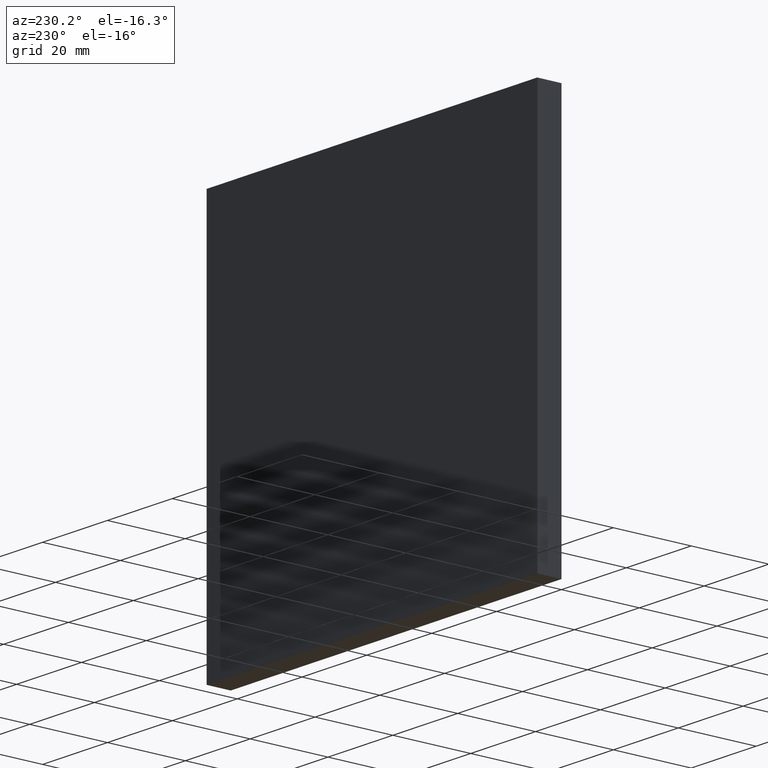
[diagram: clean part render]
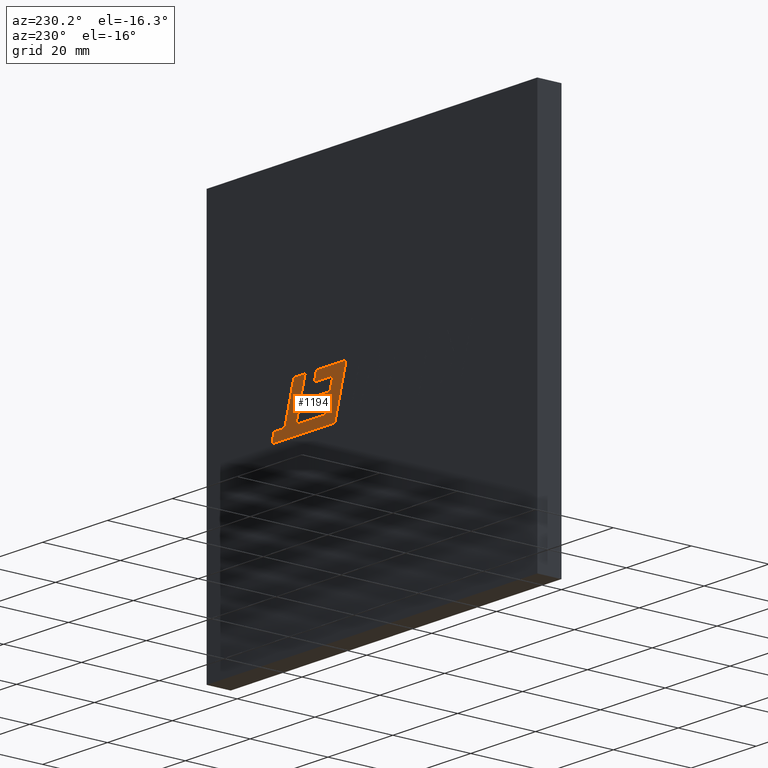
[diagram: same view with one face highlighted and labeled with its STEP entity id]
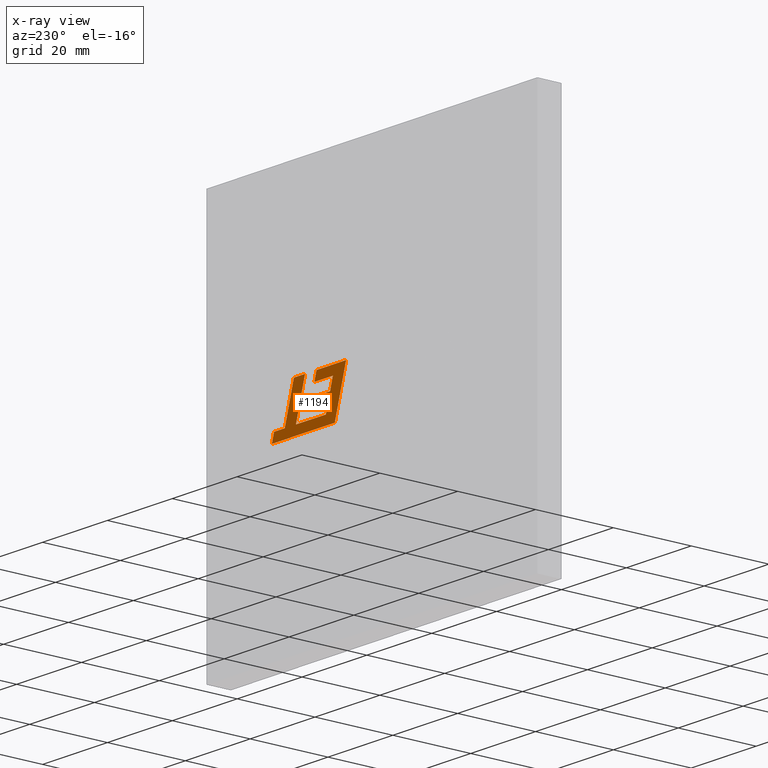
[diagram: x-ray of the same camera — body ghosted, the highlighted face saturated]
A machine part, auxiliary view. The second image highlights one B-rep face of the part: STEP entity #1194.
The next image is the same camera in x-ray: the body ghosted, the highlighted face saturated — about 0% of this face is hidden behind the body in this view.
In plain terms, the highlighted planar face has unit normal (0, 1, 0).
Its self-contained STEP definition (entity closure, byte-faithful):
#8 = ORIENTED_EDGE ( 'NONE', *, *, #1482, .T. ) ;
#19 = ORIENTED_EDGE ( 'NONE', *, *, #730, .T. ) ;
#33 = LINE ( 'NONE', #58, #151 ) ;
#39 = DIRECTION ( 'NONE',  ( 0.2745159998572700988, 0.000000000000000000, -0.9615825319869134580 ) ) ;
#58 = CARTESIAN_POINT ( 'NONE',  ( 69.11094975801582052, 6.204999999999999183, -50.18799707247540454 ) ) ;
#65 = ORIENTED_EDGE ( 'NONE', *, *, #262, .T. ) ;
#95 = EDGE_CURVE ( 'NONE', #1988, #1089, #1320, .T. ) ;
#97 = DIRECTION ( 'NONE',  ( 0.2762437428917347559, 0.000000000000000000, -0.9610876102172813962 ) ) ;
#118 = EDGE_CURVE ( 'NONE', #1089, #282, #251, .T. ) ;
#151 = VECTOR ( 'NONE', #848, 1000.000000000000227 ) ;
#154 = VECTOR ( 'NONE', #1835, 1000.000000000000000 ) ;
#164 = EDGE_CURVE ( 'NONE', #755, #484, #1156, .T. ) ;
#168 = EDGE_CURVE ( 'NONE', #389, #353, #1849, .T. ) ;
#172 = PLANE ( 'NONE',  #1006 ) ;
#186 = DIRECTION ( 'NONE',  ( 1.000000000000000000, 0.000000000000000000, 0.000000000000000000 ) ) ;
#195 = ORIENTED_EDGE ( 'NONE', *, *, #168, .T. ) ;
#203 = CARTESIAN_POINT ( 'NONE',  ( 69.11094975801582052, 6.204999999999999183, -50.18799707247540454 ) ) ;
#240 = LINE ( 'NONE', #1321, #1201 ) ;
#251 = LINE ( 'NONE', #1685, #419 ) ;
#261 = DIRECTION ( 'NONE',  ( 0.2729786930695107805, 0.000000000000000000, -0.9620200793798753258 ) ) ;
#262 = EDGE_CURVE ( 'NONE', #384, #1135, #1232, .T. ) ;
#263 = VERTEX_POINT ( 'NONE', #1728 ) ;
#282 = VERTEX_POINT ( 'NONE', #1397 ) ;
#331 = DIRECTION ( 'NONE',  ( 0.000000000000000000, 1.000000000000000000, 0.000000000000000000 ) ) ;
#353 = VERTEX_POINT ( 'NONE', #632 ) ;
#354 = CARTESIAN_POINT ( 'NONE',  ( 71.62771499734496672, 6.204999999999999183, -44.88000000000000256 ) ) ;
#376 = VECTOR ( 'NONE', #1392, 1000.000000000000114 ) ;
#384 = VERTEX_POINT ( 'NONE', #794 ) ;
#389 = VERTEX_POINT ( 'NONE', #1608 ) ;
#396 = ORIENTED_EDGE ( 'NONE', *, *, #626, .T. ) ;
#406 = VECTOR ( 'NONE', #982, 1000.000000000000000 ) ;
#408 = CARTESIAN_POINT ( 'NONE',  ( 81.19133670902014899, 6.204999999999999183, -54.64095646001634776 ) ) ;
#419 = VECTOR ( 'NONE', #1180, 1000.000000000000114 ) ;
#450 = CARTESIAN_POINT ( 'NONE',  ( 74.43417454020934088, 6.204999999999999183, -54.64121939637695391 ) ) ;
#466 = VECTOR ( 'NONE', #39, 999.9999999999998863 ) ;
#472 = DIRECTION ( 'NONE',  ( -0.2764273280489762397, 0.000000000000000000, 0.9610348236706636182 ) ) ;
#484 = VERTEX_POINT ( 'NONE', #1818 ) ;
#503 = CARTESIAN_POINT ( 'NONE',  ( 63.92036053429506381, 6.204999999999999183, -50.18799707247540454 ) ) ;
#529 = ORIENTED_EDGE ( 'NONE', *, *, #1389, .T. ) ;
#599 = EDGE_CURVE ( 'NONE', #1135, #389, #791, .T. ) ;
#626 = EDGE_CURVE ( 'NONE', #263, #946, #1869, .T. ) ;
#630 = CARTESIAN_POINT ( 'NONE',  ( 81.19133670902014899, 6.204999999999999183, -54.64095646001634776 ) ) ;
#632 = CARTESIAN_POINT ( 'NONE',  ( 62.44327270229951665, 6.204999999999999183, -56.97690730506114676 ) ) ;
#643 = VECTOR ( 'NONE', #698, 1000.000000000000114 ) ;
#648 = VERTEX_POINT ( 'NONE', #2070 ) ;
#656 = CARTESIAN_POINT ( 'NONE',  ( 65.21309745557404369, 6.204999999999999183, -54.67391851215661092 ) ) ;
#695 = CARTESIAN_POINT ( 'NONE',  ( 68.75651929726545575, 6.204999999999999183, -47.18188533565755449 ) ) ;
#698 = DIRECTION ( 'NONE',  ( 0.9999960426590095430, 0.000000000000000000, 0.002813301676025716565 ) ) ;
#720 = CARTESIAN_POINT ( 'NONE',  ( 75.07366478414387245, 6.204999999999999183, -44.88000000000000256 ) ) ;
#729 = DIRECTION ( 'NONE',  ( 0.2762033010289002832, 0.000000000000000000, -0.9610992334305228368 ) ) ;
#730 = EDGE_CURVE ( 'NONE', #1836, #384, #1689, .T. ) ;
#737 = VECTOR ( 'NONE', #472, 1000.000000000000114 ) ;
#755 = VERTEX_POINT ( 'NONE', #1300 ) ;
#764 = VECTOR ( 'NONE', #862, 1000.000000000000000 ) ;
#772 = CARTESIAN_POINT ( 'NONE',  ( 77.87931512503701015, 6.204999999999999183, -54.64121939634698322 ) ) ;
#791 = LINE ( 'NONE', #630, #1594 ) ;
#794 = CARTESIAN_POINT ( 'NONE',  ( 77.87931512503701015, 6.204999999999999183, -54.64121939634698322 ) ) ;
#798 = CARTESIAN_POINT ( 'NONE',  ( 68.10334618373883586, 6.204999999999999183, -44.88000000000000256 ) ) ;
#799 = LINE ( 'NONE', #1550, #376 ) ;
#807 = CARTESIAN_POINT ( 'NONE',  ( 62.44327270229951665, 6.204999999999999183, -56.97690730506114676 ) ) ;
#817 = EDGE_CURVE ( 'NONE', #1319, #1836, #845, .T. ) ;
#845 = LINE ( 'NONE', #354, #1335 ) ;
#848 = DIRECTION ( 'NONE',  ( 0.2746918797667309287, 0.000000000000000000, -0.9615323037684275764 ) ) ;
#862 = DIRECTION ( 'NONE',  ( -1.000000000000000000, 0.000000000000000000, 0.000000000000000000 ) ) ;
#880 = EDGE_LOOP ( 'NONE', ( #1503, #1019, #529, #2042, #19, #65, #1756, #195, #1526, #396, #8, #1616, #964, #1528, #1871, #1435, #1830 ) ) ;
#912 = CARTESIAN_POINT ( 'NONE',  ( 70.75657229993004194, 6.204999999999999183, -54.65832298336915329 ) ) ;
#919 = DIRECTION ( 'NONE',  ( -0.2763173343569911289, 0.000000000000000000, 0.9610664548998922863 ) ) ;
#926 = VERTEX_POINT ( 'NONE', #203 ) ;
#936 = VECTOR ( 'NONE', #261, 1000.000000000000114 ) ;
#946 = VERTEX_POINT ( 'NONE', #798 ) ;
#958 = VERTEX_POINT ( 'NONE', #1581 ) ;
#964 = ORIENTED_EDGE ( 'NONE', *, *, #1317, .T. ) ;
#970 = VECTOR ( 'NONE', #1880, 1000.000000000000000 ) ;
#982 = DIRECTION ( 'NONE',  ( 1.000000000000000000, 0.000000000000000000, 0.000000000000000000 ) ) ;
#996 = LINE ( 'NONE', #1825, #466 ) ;
#1002 = VECTOR ( 'NONE', #1892, 1000.000000000000227 ) ;
#1006 = AXIS2_PLACEMENT_3D ( 'NONE', #1446, #331, #1603 ) ;
#1017 = CARTESIAN_POINT ( 'NONE',  ( 71.62771499734496672, 6.204999999999999183, -44.88000000000000256 ) ) ;
#1019 = ORIENTED_EDGE ( 'NONE', *, *, #118, .T. ) ;
#1029 = CARTESIAN_POINT ( 'NONE',  ( 65.21309745557404369, 6.204999999999999183, -54.67391851215661092 ) ) ;
#1063 = LINE ( 'NONE', #450, #1804 ) ;
#1089 = VERTEX_POINT ( 'NONE', #912 ) ;
#1135 = VERTEX_POINT ( 'NONE', #408 ) ;
#1156 = LINE ( 'NONE', #1190, #154 ) ;
#1180 = DIRECTION ( 'NONE',  ( 0.9999891854650020395, 0.000000000000000000, 0.004650693823689952197 ) ) ;
#1190 = CARTESIAN_POINT ( 'NONE',  ( 69.74970436380137073, 6.204999999999999183, -52.42389566607504747 ) ) ;
#1194 = ADVANCED_FACE ( 'NONE', ( #1227 ), #172, .T. ) ;
#1201 = VECTOR ( 'NONE', #1478, 1000.000000000000000 ) ;
#1210 = EDGE_CURVE ( 'NONE', #484, #1988, #799, .T. ) ;
#1227 = FACE_OUTER_BOUND ( 'NONE', #880, .T. ) ;
#1232 = LINE ( 'NONE', #772, #1002 ) ;
#1300 = CARTESIAN_POINT ( 'NONE',  ( 69.74970436380137073, 6.204999999999999183, -52.42389566607504747 ) ) ;
#1317 = EDGE_CURVE ( 'NONE', #648, #958, #996, .T. ) ;
#1319 = VERTEX_POINT ( 'NONE', #1017 ) ;
#1320 = LINE ( 'NONE', #1029, #643 ) ;
#1321 = CARTESIAN_POINT ( 'NONE',  ( 68.75651929726545575, 6.204999999999999183, -47.18188533565755449 ) ) ;
#1330 = EDGE_CURVE ( 'NONE', #1975, #648, #240, .T. ) ;
#1335 = VECTOR ( 'NONE', #186, 1000.000000000000000 ) ;
#1389 = EDGE_CURVE ( 'NONE', #282, #1319, #1063, .T. ) ;
#1392 = DIRECTION ( 'NONE',  ( 0.2793947940814919262, 0.000000000000000000, -0.9601763114346034689 ) ) ;
#1397 = CARTESIAN_POINT ( 'NONE',  ( 74.43417454020934088, 6.204999999999999183, -54.64121939637695391 ) ) ;
#1412 = CARTESIAN_POINT ( 'NONE',  ( 58.96377780613941155, 6.204999999999999183, -44.88000000000000256 ) ) ;
#1435 = ORIENTED_EDGE ( 'NONE', *, *, #164, .T. ) ;
#1446 = CARTESIAN_POINT ( 'NONE',  ( -0.02553512749511530067, 6.204999999999999183, 0.08865145588189682346 ) ) ;
#1474 = LINE ( 'NONE', #503, #406 ) ;
#1478 = DIRECTION ( 'NONE',  ( -1.000000000000000000, 0.000000000000000000, 0.000000000000000000 ) ) ;
#1482 = EDGE_CURVE ( 'NONE', #946, #1975, #1548, .T. ) ;
#1503 = ORIENTED_EDGE ( 'NONE', *, *, #95, .T. ) ;
#1518 = CARTESIAN_POINT ( 'NONE',  ( 75.07366478414387245, 6.204999999999999183, -44.88000000000000256 ) ) ;
#1526 = ORIENTED_EDGE ( 'NONE', *, *, #1596, .T. ) ;
#1528 = ORIENTED_EDGE ( 'NONE', *, *, #1696, .T. ) ;
#1548 = LINE ( 'NONE', #1686, #936 ) ;
#1550 = CARTESIAN_POINT ( 'NONE',  ( 64.55837950193036079, 6.204999999999999183, -52.42389566607504747 ) ) ;
#1581 = CARTESIAN_POINT ( 'NONE',  ( 63.92036053429506381, 6.204999999999999183, -50.18799707247540454 ) ) ;
#1587 = LINE ( 'NONE', #807, #737 ) ;
#1594 = VECTOR ( 'NONE', #729, 1000.000000000000000 ) ;
#1596 = EDGE_CURVE ( 'NONE', #353, #263, #1587, .T. ) ;
#1603 = DIRECTION ( 'NONE',  ( 0.000000000000000000, 0.000000000000000000, 1.000000000000000000 ) ) ;
#1608 = CARTESIAN_POINT ( 'NONE',  ( 81.86264859024980467, 6.204999999999999183, -56.97690730506114676 ) ) ;
#1616 = ORIENTED_EDGE ( 'NONE', *, *, #1330, .T. ) ;
#1685 = CARTESIAN_POINT ( 'NONE',  ( 70.75657229993004194, 6.204999999999999183, -54.65832298336915329 ) ) ;
#1686 = CARTESIAN_POINT ( 'NONE',  ( 68.10334618373883586, 6.204999999999999183, -44.88000000000000256 ) ) ;
#1689 = LINE ( 'NONE', #1518, #1771 ) ;
#1696 = EDGE_CURVE ( 'NONE', #958, #926, #1474, .T. ) ;
#1728 = CARTESIAN_POINT ( 'NONE',  ( 58.96377780613941155, 6.204999999999999183, -44.88000000000000256 ) ) ;
#1756 = ORIENTED_EDGE ( 'NONE', *, *, #599, .T. ) ;
#1771 = VECTOR ( 'NONE', #97, 1000.000000000000114 ) ;
#1800 = CARTESIAN_POINT ( 'NONE',  ( 81.86264859024980467, 6.204999999999999183, -56.97690730506114676 ) ) ;
#1804 = VECTOR ( 'NONE', #919, 1000.000000000000114 ) ;
#1818 = CARTESIAN_POINT ( 'NONE',  ( 64.55837950193036079, 6.204999999999999183, -52.42389566607504747 ) ) ;
#1825 = CARTESIAN_POINT ( 'NONE',  ( 63.06216506831663082, 6.204999999999999183, -47.18188533565755449 ) ) ;
#1830 = ORIENTED_EDGE ( 'NONE', *, *, #1210, .T. ) ;
#1835 = DIRECTION ( 'NONE',  ( -1.000000000000000000, 0.000000000000000000, 0.000000000000000000 ) ) ;
#1836 = VERTEX_POINT ( 'NONE', #720 ) ;
#1849 = LINE ( 'NONE', #1800, #764 ) ;
#1869 = LINE ( 'NONE', #1412, #970 ) ;
#1871 = ORIENTED_EDGE ( 'NONE', *, *, #1933, .T. ) ;
#1880 = DIRECTION ( 'NONE',  ( 1.000000000000000000, 0.000000000000000000, 0.000000000000000000 ) ) ;
#1892 = DIRECTION ( 'NONE',  ( 0.9999999968487351953, 0.000000000000000000, 7.938847110022766846E-05 ) ) ;
#1933 = EDGE_CURVE ( 'NONE', #926, #755, #33, .T. ) ;
#1975 = VERTEX_POINT ( 'NONE', #695 ) ;
#1988 = VERTEX_POINT ( 'NONE', #656 ) ;
#2042 = ORIENTED_EDGE ( 'NONE', *, *, #817, .T. ) ;
#2070 = CARTESIAN_POINT ( 'NONE',  ( 63.06216506831663082, 6.204999999999999183, -47.18188533565755449 ) ) ;